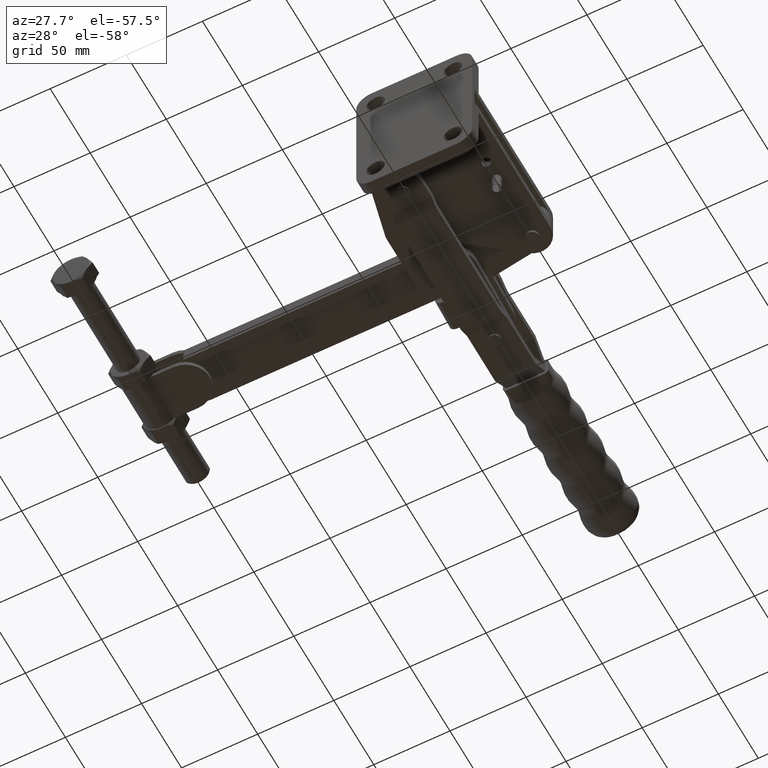
[diagram: clean part render]
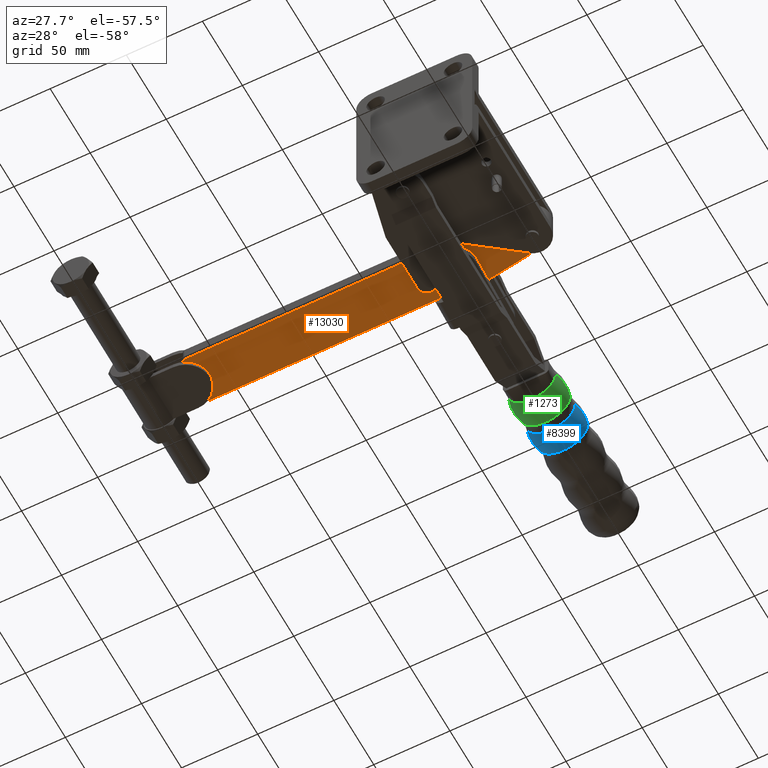
[diagram: same view with three faces highlighted in distinct colors, each labeled with its STEP entity id]
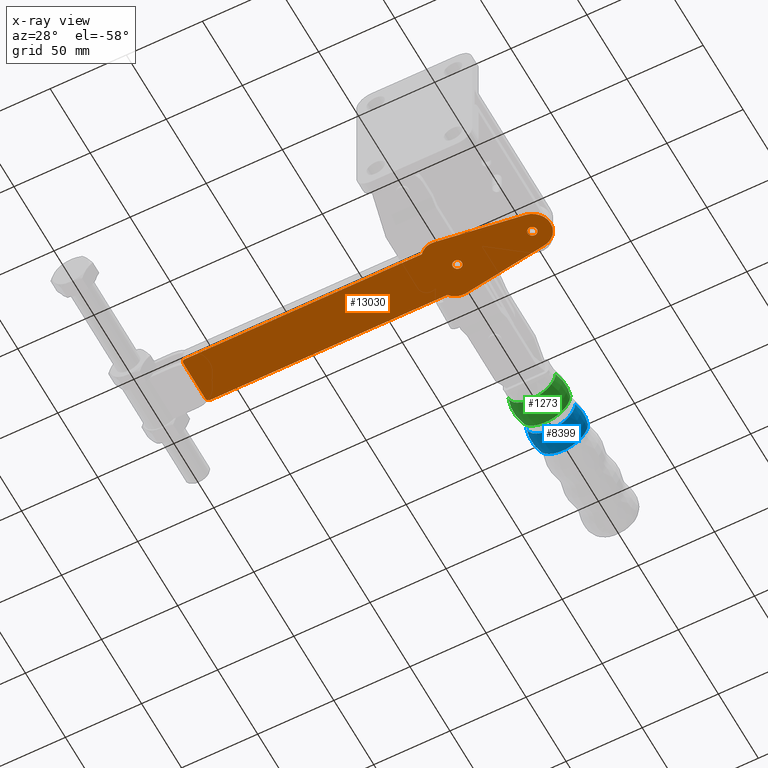
[diagram: x-ray of the same camera — body ghosted, the three highlighted faces saturated]
A machine part, auxiliary view with three faces highlighted in distinct colors.
The next image is the same camera in x-ray (body ghosted, the three faces saturated) — at least one of them is partly hidden behind the body in this view.
Their STEP definitions:

[orange] entity #13030 — the highlighted planar face has unit normal (0, 0, 1).
#99 = VECTOR ( 'NONE', #4196, 1000.000000000000000 ) ;
#228 = ORIENTED_EDGE ( 'NONE', *, *, #9619, .F. ) ;
#254 = CIRCLE ( 'NONE', #4280, 2.999999999999999100 ) ;
#541 = CARTESIAN_POINT ( 'NONE',  ( -9.000000000000010700, 95.00000000000002800, -10.00000000000000900 ) ) ;
#587 = FACE_BOUND ( 'NONE', #6770, .T. ) ;
#639 = CARTESIAN_POINT ( 'NONE',  ( -232.0000000000002000, 81.10000000000000900, -10.00000000000000900 ) ) ;
#818 = AXIS2_PLACEMENT_3D ( 'NONE', #12192, #5908, #13225 ) ;
#823 = VERTEX_POINT ( 'NONE', #7587 ) ;
#928 = CARTESIAN_POINT ( 'NONE',  ( -64.25000000000002800, 95.00000000000002800, -10.00000000000000900 ) ) ;
#985 = CARTESIAN_POINT ( 'NONE',  ( -58.25000000000002100, 95.00000000000002800, -10.00000000000000900 ) ) ;
#998 = DIRECTION ( 'NONE',  ( 1.000000000000000000, 0.0000000000000000000, 0.0000000000000000000 ) ) ;
#1111 = AXIS2_PLACEMENT_3D ( 'NONE', #8600, #9634, #5469 ) ;
#1141 = CARTESIAN_POINT ( 'NONE',  ( -10.29403100142704200, 106.8781172656242000, -10.00000000000000900 ) ) ;
#1179 = VECTOR ( 'NONE', #5651, 1000.000000000000000 ) ;
#1184 = AXIS2_PLACEMENT_3D ( 'NONE', #9176, #8930, #9251 ) ;
#1358 = EDGE_CURVE ( 'NONE', #6913, #4628, #9201, .T. ) ;
#1528 = CARTESIAN_POINT ( 'NONE',  ( -232.0000000000002000, 79.10000000000000900, -10.00000000000000900 ) ) ;
#1653 = DIRECTION ( 'NONE',  ( 0.0000000000000000000, 0.0000000000000000000, 1.000000000000000000 ) ) ;
#1719 = DIRECTION ( 'NONE',  ( -0.9898431054686427400, 0.1421640832144086500, -0.0000000000000000000 ) ) ;
#1882 = EDGE_CURVE ( 'NONE', #11155, #2549, #12140, .T. ) ;
#1976 = VERTEX_POINT ( 'NONE', #4831 ) ;
#2048 = AXIS2_PLACEMENT_3D ( 'NONE', #3431, #7842, #9231 ) ;
#2084 = VERTEX_POINT ( 'NONE', #5185 ) ;
#2199 = EDGE_LOOP ( 'NONE', ( #10745, #5282 ) ) ;
#2313 = CARTESIAN_POINT ( 'NONE',  ( -234.0000000000002000, 81.10000000000000900, -10.00000000000000900 ) ) ;
#2416 = DIRECTION ( 'NONE',  ( -0.0000000000000000000, -0.0000000000000000000, -1.000000000000000000 ) ) ;
#2549 = VERTEX_POINT ( 'NONE', #13207 ) ;
#2849 = LINE ( 'NONE', #10586, #10879 ) ;
#3053 = ORIENTED_EDGE ( 'NONE', *, *, #1882, .F. ) ;
#3261 = VERTEX_POINT ( 'NONE', #11638 ) ;
#3431 = CARTESIAN_POINT ( 'NONE',  ( -232.0000000000002000, 81.10000000000000900, -10.00000000000000900 ) ) ;
#3509 = EDGE_CURVE ( 'NONE', #9777, #10978, #11842, .T. ) ;
#3565 = DIRECTION ( 'NONE',  ( -0.0000000000000000000, -0.0000000000000000000, -1.000000000000000000 ) ) ;
#3772 = EDGE_LOOP ( 'NONE', ( #8425, #4110, #228, #11388, #11206, #4313, #10915, #7852, #3053, #5542 ) ) ;
#3959 = AXIS2_PLACEMENT_3D ( 'NONE', #4107, #2416, #5875 ) ;
#3991 = EDGE_CURVE ( 'NONE', #12493, #2084, #8027, .T. ) ;
#4107 = CARTESIAN_POINT ( 'NONE',  ( -61.25000000000002800, 95.00000000000002800, -10.00000000000000900 ) ) ;
#4110 = ORIENTED_EDGE ( 'NONE', *, *, #6962, .F. ) ;
#4151 = EDGE_CURVE ( 'NONE', #10978, #9777, #12801, .T. ) ;
#4196 = DIRECTION ( 'NONE',  ( -1.000000000000000000, -1.336088169329668900E-016, 0.0000000000000000000 ) ) ;
#4280 = AXIS2_PLACEMENT_3D ( 'NONE', #12110, #5832, #13146 ) ;
#4313 = ORIENTED_EDGE ( 'NONE', *, *, #4319, .F. ) ;
#4319 = EDGE_CURVE ( 'NONE', #6125, #6913, #11810, .T. ) ;
#4354 = VECTOR ( 'NONE', #10502, 1000.000000000000000 ) ;
#4628 = VERTEX_POINT ( 'NONE', #5342 ) ;
#4831 = CARTESIAN_POINT ( 'NONE',  ( -10.29403100142703800, 83.12188273437585900, -10.00000000000000900 ) ) ;
#4844 = EDGE_CURVE ( 'NONE', #2084, #11155, #10468, .T. ) ;
#4988 = AXIS2_PLACEMENT_3D ( 'NONE', #639, #1653, #8939 ) ;
#5024 = ORIENTED_EDGE ( 'NONE', *, *, #3509, .F. ) ;
#5158 = CARTESIAN_POINT ( 'NONE',  ( -66.06619508464157800, 114.8882741601553500, -10.00000000000000900 ) ) ;
#5185 = CARTESIAN_POINT ( 'NONE',  ( -232.0000000000002000, 79.10000000000000900, -10.00000000000000900 ) ) ;
#5282 = ORIENTED_EDGE ( 'NONE', *, *, #5706, .F. ) ;
#5342 = CARTESIAN_POINT ( 'NONE',  ( -76.19679636737123500, 110.9000000000000100, -10.00000000000000900 ) ) ;
#5372 = DIRECTION ( 'NONE',  ( 0.9898431054686427400, 0.1421640832144088500, 0.0000000000000000000 ) ) ;
#5469 = DIRECTION ( 'NONE',  ( 1.000000000000000000, 0.0000000000000000000, 0.0000000000000000000 ) ) ;
#5542 = ORIENTED_EDGE ( 'NONE', *, *, #4844, .F. ) ;
#5651 = DIRECTION ( 'NONE',  ( 1.000000000000000000, -6.680440846648343100E-017, 0.0000000000000000000 ) ) ;
#5706 = EDGE_CURVE ( 'NONE', #823, #11905, #10127, .T. ) ;
#5832 = DIRECTION ( 'NONE',  ( -0.0000000000000000000, -0.0000000000000000000, -1.000000000000000000 ) ) ;
#5875 = DIRECTION ( 'NONE',  ( 1.000000000000000000, 0.0000000000000000000, 0.0000000000000000000 ) ) ;
#5908 = DIRECTION ( 'NONE',  ( 0.0000000000000000000, 0.0000000000000000000, 1.000000000000000000 ) ) ;
#5940 = CARTESIAN_POINT ( 'NONE',  ( -232.0000000000002000, 108.8999999999999900, -10.00000000000000900 ) ) ;
#6086 = FACE_BOUND ( 'NONE', #2199, .T. ) ;
#6125 = VERTEX_POINT ( 'NONE', #1141 ) ;
#6770 = EDGE_LOOP ( 'NONE', ( #10789, #5024 ) ) ;
#6840 = PLANE ( 'NONE',  #4988 ) ;
#6913 = VERTEX_POINT ( 'NONE', #5158 ) ;
#6962 = EDGE_CURVE ( 'NONE', #7614, #12493, #7133, .T. ) ;
#7000 = DIRECTION ( 'NONE',  ( 1.000000000000000000, 0.0000000000000000000, 0.0000000000000000000 ) ) ;
#7133 = LINE ( 'NONE', #11527, #4354 ) ;
#7306 = EDGE_CURVE ( 'NONE', #1976, #6125, #13151, .T. ) ;
#7539 = VECTOR ( 'NONE', #1719, 1000.000000000000200 ) ;
#7587 = CARTESIAN_POINT ( 'NONE',  ( -15.00000000000001100, 95.00000000000002800, -10.00000000000000900 ) ) ;
#7614 = VERTEX_POINT ( 'NONE', #11963 ) ;
#7842 = DIRECTION ( 'NONE',  ( 0.0000000000000000000, 0.0000000000000000000, 1.000000000000000000 ) ) ;
#7852 = ORIENTED_EDGE ( 'NONE', *, *, #12462, .F. ) ;
#8027 = CIRCLE ( 'NONE', #2048, 2.000000000000001800 ) ;
#8240 = DIRECTION ( 'NONE',  ( 0.0000000000000000000, 0.0000000000000000000, 1.000000000000000000 ) ) ;
#8371 = LINE ( 'NONE', #9384, #99 ) ;
#8425 = ORIENTED_EDGE ( 'NONE', *, *, #3991, .F. ) ;
#8451 = CARTESIAN_POINT ( 'NONE',  ( -76.19679636737120600, 79.10000000000000900, -10.00000000000000900 ) ) ;
#8533 = FACE_OUTER_BOUND ( 'NONE', #3772, .T. ) ;
#8600 = CARTESIAN_POINT ( 'NONE',  ( -61.25000000000002800, 95.00000000000002800, -10.00000000000000900 ) ) ;
#8930 = DIRECTION ( 'NONE',  ( 0.0000000000000000000, 0.0000000000000000000, 1.000000000000000000 ) ) ;
#8939 = DIRECTION ( 'NONE',  ( 1.000000000000000000, 0.0000000000000000000, -0.0000000000000000000 ) ) ;
#9176 = CARTESIAN_POINT ( 'NONE',  ( -67.63000000000008100, 85.99999999999977300, -10.00000000000000900 ) ) ;
#9201 = CIRCLE ( 'NONE', #12456, 11.00000000000000400 ) ;
#9231 = DIRECTION ( 'NONE',  ( 1.000000000000000000, 0.0000000000000000000, 0.0000000000000000000 ) ) ;
#9251 = DIRECTION ( 'NONE',  ( 1.000000000000000000, 0.0000000000000000000, 0.0000000000000000000 ) ) ;
#9384 = CARTESIAN_POINT ( 'NONE',  ( -76.19679636737123500, 110.9000000000000100, -10.00000000000000900 ) ) ;
#9619 = EDGE_CURVE ( 'NONE', #3261, #7614, #12896, .T. ) ;
#9634 = DIRECTION ( 'NONE',  ( -0.0000000000000000000, -0.0000000000000000000, -1.000000000000000000 ) ) ;
#9777 = VERTEX_POINT ( 'NONE', #928 ) ;
#9834 = CARTESIAN_POINT ( 'NONE',  ( -12.00000000000001100, 95.00000000000002800, -10.00000000000000900 ) ) ;
#10127 = CIRCLE ( 'NONE', #13430, 2.999999999999999100 ) ;
#10468 = LINE ( 'NONE', #1528, #1179 ) ;
#10502 = DIRECTION ( 'NONE',  ( 0.0000000000000000000, -1.000000000000000000, 0.0000000000000000000 ) ) ;
#10586 = CARTESIAN_POINT ( 'NONE',  ( -66.06619508464157800, 75.11172583984470900, -10.00000000000000900 ) ) ;
#10698 = AXIS2_PLACEMENT_3D ( 'NONE', #5940, #13254, #7000 ) ;
#10745 = ORIENTED_EDGE ( 'NONE', *, *, #13039, .F. ) ;
#10789 = ORIENTED_EDGE ( 'NONE', *, *, #4151, .F. ) ;
#10879 = VECTOR ( 'NONE', #5372, 1000.000000000000200 ) ;
#10894 = DIRECTION ( 'NONE',  ( 1.000000000000000000, 0.0000000000000000000, 0.0000000000000000000 ) ) ;
#10915 = ORIENTED_EDGE ( 'NONE', *, *, #7306, .F. ) ;
#10978 = VERTEX_POINT ( 'NONE', #985 ) ;
#11155 = VERTEX_POINT ( 'NONE', #8451 ) ;
#11206 = ORIENTED_EDGE ( 'NONE', *, *, #1358, .F. ) ;
#11388 = ORIENTED_EDGE ( 'NONE', *, *, #13300, .F. ) ;
#11527 = CARTESIAN_POINT ( 'NONE',  ( -234.0000000000002000, 108.8999999999999900, -10.00000000000000900 ) ) ;
#11638 = CARTESIAN_POINT ( 'NONE',  ( -232.0000000000002000, 110.9000000000000100, -10.00000000000000900 ) ) ;
#11810 = LINE ( 'NONE', #13161, #7539 ) ;
#11842 = CIRCLE ( 'NONE', #3959, 3.000000000000002700 ) ;
#11905 = VERTEX_POINT ( 'NONE', #541 ) ;
#11963 = CARTESIAN_POINT ( 'NONE',  ( -234.0000000000002000, 108.8999999999999900, -10.00000000000000900 ) ) ;
#12110 = CARTESIAN_POINT ( 'NONE',  ( -12.00000000000001100, 95.00000000000002800, -10.00000000000000900 ) ) ;
#12140 = CIRCLE ( 'NONE', #1184, 10.99999999999999600 ) ;
#12192 = CARTESIAN_POINT ( 'NONE',  ( -12.00000000000001100, 95.00000000000002800, -10.00000000000000900 ) ) ;
#12456 = AXIS2_PLACEMENT_3D ( 'NONE', #13016, #8240, #998 ) ;
#12462 = EDGE_CURVE ( 'NONE', #2549, #1976, #2849, .T. ) ;
#12493 = VERTEX_POINT ( 'NONE', #2313 ) ;
#12801 = CIRCLE ( 'NONE', #1111, 3.000000000000002700 ) ;
#12896 = CIRCLE ( 'NONE', #10698, 2.000000000000001800 ) ;
#13016 = CARTESIAN_POINT ( 'NONE',  ( -67.63000000000008100, 104.0000000000002600, -10.00000000000000900 ) ) ;
#13030 = ADVANCED_FACE ( 'NONE', ( #8533, #6086, #587 ), #6840, .F. ) ;
#13039 = EDGE_CURVE ( 'NONE', #11905, #823, #254, .T. ) ;
#13146 = DIRECTION ( 'NONE',  ( 1.000000000000000000, 0.0000000000000000000, 0.0000000000000000000 ) ) ;
#13151 = CIRCLE ( 'NONE', #818, 12.00000000000046200 ) ;
#13161 = CARTESIAN_POINT ( 'NONE',  ( -66.06619508464157800, 114.8882741601553500, -10.00000000000000900 ) ) ;
#13207 = CARTESIAN_POINT ( 'NONE',  ( -66.06619508464157800, 75.11172583984470900, -10.00000000000000900 ) ) ;
#13225 = DIRECTION ( 'NONE',  ( 1.000000000000000000, 0.0000000000000000000, 0.0000000000000000000 ) ) ;
#13254 = DIRECTION ( 'NONE',  ( 0.0000000000000000000, 0.0000000000000000000, 1.000000000000000000 ) ) ;
#13300 = EDGE_CURVE ( 'NONE', #4628, #3261, #8371, .T. ) ;
#13430 = AXIS2_PLACEMENT_3D ( 'NONE', #9834, #3565, #10894 ) ;

[blue] entity #8399 — the highlighted toroidal blend (fillet) surface has major radius 8.5 mm and minor (blend) radius 26 mm.
#276 = CIRCLE ( 'NONE', #2396, 16.25653050144822100 ) ;
#405 = DIRECTION ( 'NONE',  ( 3.643658971098867300E-016, 6.753682777751557500E-016, 1.000000000000000000 ) ) ;
#520 = EDGE_CURVE ( 'NONE', #12114, #13105, #276, .T. ) ;
#819 = CARTESIAN_POINT ( 'NONE',  ( -79.25653050144902100, 214.8555555555551000, -5.000000000000193600 ) ) ;
#1744 = CIRCLE ( 'NONE', #9690, 16.25653050144823600 ) ;
#2033 = ORIENTED_EDGE ( 'NONE', *, *, #12887, .F. ) ;
#2396 = AXIS2_PLACEMENT_3D ( 'NONE', #8994, #4881, #7547 ) ;
#3721 = CARTESIAN_POINT ( 'NONE',  ( -54.50000000000079600, 222.7999999999996100, -5.000000000000199800 ) ) ;
#3834 = CARTESIAN_POINT ( 'NONE',  ( -46.74346949855257800, 230.7444444444442700, -5.000000000000209600 ) ) ;
#3888 = DIRECTION ( 'NONE',  ( 9.986945165038633700E-016, 1.000000000000000000, -6.753682777751561400E-016 ) ) ;
#4112 = AXIS2_PLACEMENT_3D ( 'NONE', #4902, #3888, #11205 ) ;
#4371 = VERTEX_POINT ( 'NONE', #8073 ) ;
#4478 = CARTESIAN_POINT ( 'NONE',  ( -63.00000000000078900, 230.7444444444443000, -5.000000000000204300 ) ) ;
#4545 = AXIS2_PLACEMENT_3D ( 'NONE', #6603, #405, #7667 ) ;
#4789 = DIRECTION ( 'NONE',  ( 0.0000000000000000000, 1.000000000000000000, -6.672013369141538600E-016 ) ) ;
#4881 = DIRECTION ( 'NONE',  ( 9.986945165038633700E-016, 1.000000000000000000, -6.753682777751561400E-016 ) ) ;
#4902 = CARTESIAN_POINT ( 'NONE',  ( -63.00000000000080300, 222.7999999999996100, -5.000000000000198100 ) ) ;
#5519 = DIRECTION ( 'NONE',  ( 1.000000000000000000, -1.707349278073588200E-015, -3.734826545785974300E-016 ) ) ;
#6282 = ORIENTED_EDGE ( 'NONE', *, *, #7224, .T. ) ;
#6603 = CARTESIAN_POINT ( 'NONE',  ( -71.50000000000081000, 222.7999999999996100, -5.000000000000194500 ) ) ;
#6609 = EDGE_LOOP ( 'NONE', ( #10814, #6282, #12932, #2033 ) ) ;
#7095 = EDGE_CURVE ( 'NONE', #10274, #4371, #1744, .T. ) ;
#7224 = EDGE_CURVE ( 'NONE', #13105, #4371, #11382, .T. ) ;
#7547 = DIRECTION ( 'NONE',  ( 1.000000000000000000, -1.707349278073589800E-015, -3.734826545785977700E-016 ) ) ;
#7667 = DIRECTION ( 'NONE',  ( 0.0000000000000000000, -1.000000000000000000, 6.672013369141538600E-016 ) ) ;
#8073 = CARTESIAN_POINT ( 'NONE',  ( -79.25653050144900600, 230.7444444444443300, -5.000000000000200700 ) ) ;
#8399 = ADVANCED_FACE ( 'NONE', ( #9640 ), #11467, .T. ) ;
#8994 = CARTESIAN_POINT ( 'NONE',  ( -63.00000000000080300, 214.8555555555550700, -5.000000000000192700 ) ) ;
#9640 = FACE_OUTER_BOUND ( 'NONE', #6609, .T. ) ;
#9690 = AXIS2_PLACEMENT_3D ( 'NONE', #4478, #11802, #5519 ) ;
#10147 = AXIS2_PLACEMENT_3D ( 'NONE', #3721, #11044, #4789 ) ;
#10274 = VERTEX_POINT ( 'NONE', #3834 ) ;
#10814 = ORIENTED_EDGE ( 'NONE', *, *, #520, .T. ) ;
#11044 = DIRECTION ( 'NONE',  ( -2.419012171951514300E-016, -6.753682777751559500E-016, -1.000000000000000000 ) ) ;
#11184 = CARTESIAN_POINT ( 'NONE',  ( -46.74346949855258500, 214.8555555555550400, -5.000000000000199000 ) ) ;
#11205 = DIRECTION ( 'NONE',  ( 1.000000000000000000, -9.986945165038637600E-016, -3.469446951953598400E-016 ) ) ;
#11382 = CIRCLE ( 'NONE', #10147, 26.00000000000010700 ) ;
#11467 = TOROIDAL_SURFACE ( 'NONE', #4112, -8.500000000000003600, 26.00000000000009900 ) ;
#11802 = DIRECTION ( 'NONE',  ( 9.986945165038633700E-016, 1.000000000000000000, -6.753682777751561400E-016 ) ) ;
#11844 = CIRCLE ( 'NONE', #4545, 26.00000000000010700 ) ;
#12114 = VERTEX_POINT ( 'NONE', #11184 ) ;
#12887 = EDGE_CURVE ( 'NONE', #12114, #10274, #11844, .T. ) ;
#12932 = ORIENTED_EDGE ( 'NONE', *, *, #7095, .F. ) ;
#13105 = VERTEX_POINT ( 'NONE', #819 ) ;

[green] entity #1273 — the highlighted toroidal blend (fillet) surface has major radius 8.5 mm and minor (blend) radius 26 mm.
#28 = CARTESIAN_POINT ( 'NONE',  ( -78.49019106024687200, 191.2800809864420700, -7.637303540897980800 ) ) ;
#73 = CARTESIAN_POINT ( 'NONE',  ( -59.40245479565216200, 191.2800809864420400, -20.41827701047750000 ) ) ;
#121 = CARTESIAN_POINT ( 'NONE',  ( -47.30555555555637400, 191.2800809864420400, -5.437897028947155300 ) ) ;
#487 = CIRCLE ( 'NONE', #10880, 25.99999999999999600 ) ;
#538 = CARTESIAN_POINT ( 'NONE',  ( -79.25653050144909200, 208.7444444444441600, -5.000000000000184700 ) ) ;
#858 = CARTESIAN_POINT ( 'NONE',  ( -78.69444444444528100, 191.2800809864421000, -5.000000000000170500 ) ) ;
#1085 = CARTESIAN_POINT ( 'NONE',  ( -77.96306598200158100, 191.2800809864420700, -9.754376149618101600 ) ) ;
#1128 = CARTESIAN_POINT ( 'NONE',  ( -52.96884917211819000, 191.2800809864420400, -17.24698323588776100 ) ) ;
#1273 = ADVANCED_FACE ( 'NONE', ( #8369 ), #10205, .T. ) ;
#1570 = ORIENTED_EDGE ( 'NONE', *, *, #10140, .T. ) ;
#1702 = EDGE_LOOP ( 'NONE', ( #10823, #1570, #11932, #12899 ) ) ;
#1972 = VERTEX_POINT ( 'NONE', #538 ) ;
#2101 = CARTESIAN_POINT ( 'NONE',  ( -77.36892202805580600, 191.2800809864420700, -11.35368377253872300 ) ) ;
#2146 = CARTESIAN_POINT ( 'NONE',  ( -50.30901674717874500, 191.2800809864420400, -14.24389765476820600 ) ) ;
#2644 = DIRECTION ( 'NONE',  ( 3.643658971098867300E-016, 6.753682777751557500E-016, 1.000000000000000000 ) ) ;
#2791 = CARTESIAN_POINT ( 'NONE',  ( -63.00000000000081700, 200.7999999999995900, -5.000000000000183000 ) ) ;
#3116 = CARTESIAN_POINT ( 'NONE',  ( -76.18518118855563200, 191.2800809864420700, -13.54367677818342500 ) ) ;
#3164 = CARTESIAN_POINT ( 'NONE',  ( -49.17860873781629000, 191.2800809864420400, -12.46981798472758200 ) ) ;
#3262 = CARTESIAN_POINT ( 'NONE',  ( -78.69444444444528100, 191.2800809864421000, -5.000000000000170500 ) ) ;
#4076 = AXIS2_PLACEMENT_3D ( 'NONE', #8915, #2644, #9972 ) ;
#4199 = CARTESIAN_POINT ( 'NONE',  ( -74.69691715525809200, 191.2800809864420700, -15.53094554072281900 ) ) ;
#4246 = CARTESIAN_POINT ( 'NONE',  ( -48.31957055646243000, 191.2800809864420400, -10.56674672008615300 ) ) ;
#4581 = CARTESIAN_POINT ( 'NONE',  ( -46.74346949855252800, 208.7444444444441000, -5.000000000000195400 ) ) ;
#4605 = VERTEX_POINT ( 'NONE', #3262 ) ;
#5056 = EDGE_CURVE ( 'NONE', #4605, #9963, #6099, .T. ) ;
#5239 = CARTESIAN_POINT ( 'NONE',  ( -63.00000000000080300, 208.7444444444441300, -5.000000000000188300 ) ) ;
#5241 = CARTESIAN_POINT ( 'NONE',  ( -70.00147479068573400, 191.2800809864420700, -19.19942725262363600 ) ) ;
#5291 = CARTESIAN_POINT ( 'NONE',  ( -47.78600105143772900, 191.2800809864420400, -8.927047932760061100 ) ) ;
#5605 = CIRCLE ( 'NONE', #9608, 16.25653050144826400 ) ;
#5746 = DIRECTION ( 'NONE',  ( -2.419012171951514300E-016, -6.753682777751559500E-016, -1.000000000000000000 ) ) ;
#5790 = EDGE_CURVE ( 'NONE', #9963, #10075, #9449, .T. ) ;
#6099 = B_SPLINE_CURVE_WITH_KNOTS ( 'NONE', 3,
 ( #858, #8096, #6240, #28, #7309, #1085, #8328, #2101, #9388, #3116, #10455, #4199, #11520, #5241, #12581, #6283, #73, #7348, #1128, #8372, #2146, #9432, #3164, #10499, #4246, #11570, #5291, #12624, #6330, #121, #7394 ),
 .UNSPECIFIED., .F., .F.,
 ( 4, 1, 1, 1, 2, 1, 1, 1, 2, 1, 1, 1, 1, 1, 1, 1, 2, 1, 1, 1, 2, 1, 1, 1, 4 ),
 ( 0.0000000000000000000, 0.01317373317212715600, 0.02634746634425431200, 0.03952119951638146500, 0.05269493268850862500, 0.06609283631967102800, 0.07949073995083344400, 0.09288864358199583300, 0.1062865472131582500, 0.1422149104098686900, 0.1781432736065791100, 0.2140716368032895800, 0.2500000000000000000, 0.2859283631967104400, 0.3218567263934208900, 0.3577850895901315600, 0.3937134527868417800, 0.4071113564180041700, 0.4205092600491665600, 0.4339071636803290000, 0.4473050673114914400, 0.4604788004836185600, 0.4736525336557456700, 0.4868262668278728900, 0.5000000000000000000 ),
 .UNSPECIFIED. ) ;
#6240 = CARTESIAN_POINT ( 'NONE',  ( -78.65766079969360200, 191.2800809864420700, -6.319628363405401600 ) ) ;
#6279 = DIRECTION ( 'NONE',  ( 1.000000000000000000, -1.707349278073585300E-015, -3.734826545785967900E-016 ) ) ;
#6283 = CARTESIAN_POINT ( 'NONE',  ( -63.00000000000083100, 191.2800809864420700, -20.83262969315712700 ) ) ;
#6330 = CARTESIAN_POINT ( 'NONE',  ( -47.34233920030802500, 191.2800809864420400, -6.319628363405406000 ) ) ;
#7131 = DIRECTION ( 'NONE',  ( 9.986945165038633700E-016, 1.000000000000000000, -6.753682777751561400E-016 ) ) ;
#7309 = CARTESIAN_POINT ( 'NONE',  ( -78.21399894856392600, 191.2800809864420700, -8.927047932760046900 ) ) ;
#7348 = CARTESIAN_POINT ( 'NONE',  ( -55.99852520931590800, 191.2800809864420700, -19.19942725262362900 ) ) ;
#7394 = CARTESIAN_POINT ( 'NONE',  ( -47.30555555555638100, 191.2800809864420400, -5.000000000000183900 ) ) ;
#8096 = CARTESIAN_POINT ( 'NONE',  ( -78.69444444444528100, 191.2800809864421000, -5.437897028947152700 ) ) ;
#8328 = CARTESIAN_POINT ( 'NONE',  ( -77.68042944353922500, 191.2800809864420700, -10.56674672008614200 ) ) ;
#8369 = FACE_OUTER_BOUND ( 'NONE', #1702, .T. ) ;
#8372 = CARTESIAN_POINT ( 'NONE',  ( -51.30308284474356400, 191.2800809864420400, -15.53094554072281900 ) ) ;
#8915 = CARTESIAN_POINT ( 'NONE',  ( -71.50000000000073900, 200.7999999999995900, -5.000000000000179400 ) ) ;
#9388 = CARTESIAN_POINT ( 'NONE',  ( -76.82139126218538600, 191.2800809864420700, -12.46981798472757900 ) ) ;
#9432 = CARTESIAN_POINT ( 'NONE',  ( -49.81481881144601700, 191.2800809864420400, -13.54367677818345300 ) ) ;
#9449 = CIRCLE ( 'NONE', #4076, 25.99999999999999600 ) ;
#9608 = AXIS2_PLACEMENT_3D ( 'NONE', #5239, #12577, #6279 ) ;
#9622 = AXIS2_PLACEMENT_3D ( 'NONE', #2791, #7131, #12007 ) ;
#9963 = VERTEX_POINT ( 'NONE', #11677 ) ;
#9972 = DIRECTION ( 'NONE',  ( 0.0000000000000000000, -1.000000000000000000, 6.672013369141566200E-016 ) ) ;
#10075 = VERTEX_POINT ( 'NONE', #4581 ) ;
#10140 = EDGE_CURVE ( 'NONE', #4605, #1972, #487, .T. ) ;
#10205 = TOROIDAL_SURFACE ( 'NONE', #9622, -8.499999999999928900, 25.99999999999999600 ) ;
#10455 = CARTESIAN_POINT ( 'NONE',  ( -75.69098325282291700, 191.2800809864420700, -14.24389765476819900 ) ) ;
#10499 = CARTESIAN_POINT ( 'NONE',  ( -48.63107797194584900, 191.2800809864420400, -11.35368377253874400 ) ) ;
#10823 = ORIENTED_EDGE ( 'NONE', *, *, #5056, .F. ) ;
#10880 = AXIS2_PLACEMENT_3D ( 'NONE', #12030, #5746, #13072 ) ;
#11520 = CARTESIAN_POINT ( 'NONE',  ( -73.03115082788347900, 191.2800809864420700, -17.24698323588775400 ) ) ;
#11570 = CARTESIAN_POINT ( 'NONE',  ( -48.03693401800008200, 191.2800809864420400, -9.754376149618112300 ) ) ;
#11677 = CARTESIAN_POINT ( 'NONE',  ( -47.30555555555638100, 191.2800809864420400, -5.000000000000183900 ) ) ;
#11932 = ORIENTED_EDGE ( 'NONE', *, *, #13282, .F. ) ;
#12007 = DIRECTION ( 'NONE',  ( 1.000000000000000000, -9.986945165038635600E-016, -3.469446951953605300E-016 ) ) ;
#12030 = CARTESIAN_POINT ( 'NONE',  ( -54.50000000000088800, 200.7999999999995900, -5.000000000000184700 ) ) ;
#12577 = DIRECTION ( 'NONE',  ( 9.986945165038633700E-016, 1.000000000000000000, -6.753682777751561400E-016 ) ) ;
#12581 = CARTESIAN_POINT ( 'NONE',  ( -66.59754520434950100, 191.2800809864420700, -20.41827701047750700 ) ) ;
#12624 = CARTESIAN_POINT ( 'NONE',  ( -47.50980893975478400, 191.2800809864420400, -7.637303540897993200 ) ) ;
#12899 = ORIENTED_EDGE ( 'NONE', *, *, #5790, .F. ) ;
#13072 = DIRECTION ( 'NONE',  ( 0.0000000000000000000, 1.000000000000000000, -6.672013369141566200E-016 ) ) ;
#13282 = EDGE_CURVE ( 'NONE', #10075, #1972, #5605, .T. ) ;